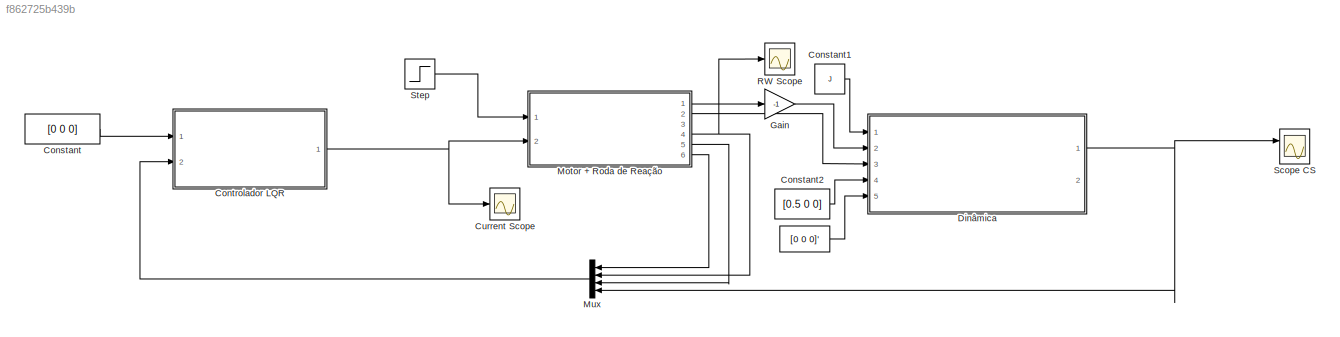
MODEL slx_f862725b439b
KIND model
CONFIG AbsTol = auto
CONFIG EnableMultiTasking = off
CONFIG FixedStep = auto
CONFIG MaxStep = 0.4
CONFIG MinStep = auto
CONFIG RelTol = 1e-3
CONFIG SampleTimeConstraint = Unconstrained
CONFIG SolverName = ode45
CONFIG StartTime = 0.0
CONFIG StopTime = 15
BLOCK [Constant]  
  Value = [0 0 0]'
BLOCK [Constant] Constant
  Value = [0 0 0]
BLOCK [Constant] Constant1
  Value = J
BLOCK [Constant] Constant2
  Value = [0.5 0 0]
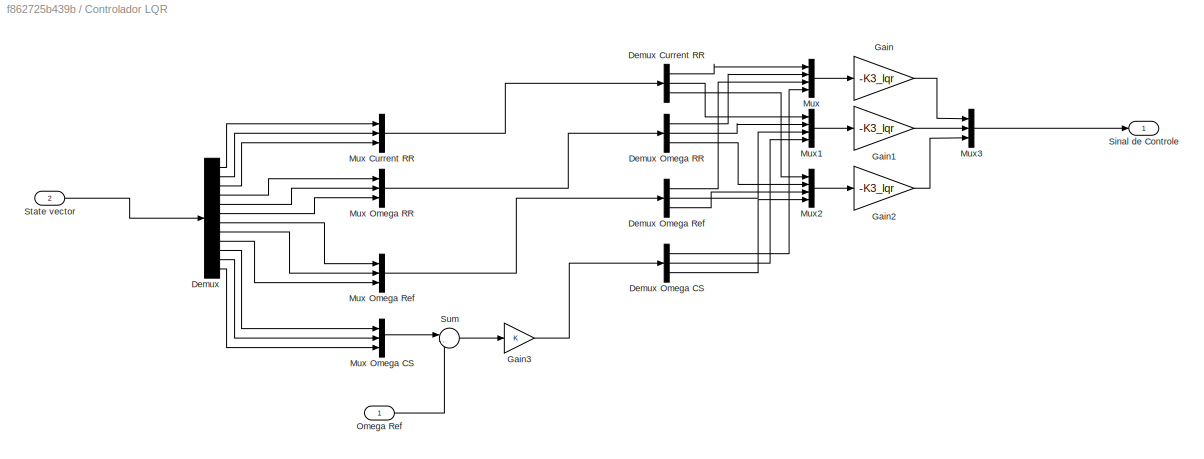
BLOCK [SubSystem] Controlador LQR
  Ports = [2, 1]
  RequestExecContextInheritance = off
BLOCK [Demux] Controlador LQR/Demux
  Outputs = 12
  Ports = [1, 12]
BLOCK [Demux] Controlador LQR/Demux Current RR
  Outputs = 3
  Ports = [1, 3]
BLOCK [Demux] Controlador LQR/Demux Omega CS
  Outputs = 3
  Ports = [1, 3]
BLOCK [Demux] Controlador LQR/Demux Omega RR
  Outputs = 3
  Ports = [1, 3]
BLOCK [Demux] Controlador LQR/Demux Omega Ref
  Outputs = 3
  Ports = [1, 3]
BLOCK [Gain] Controlador LQR/Gain
  Gain = -K3_lqr
  Multiplication = Matrix(K*u)
BLOCK [Gain] Controlador LQR/Gain1
  Gain = -K3_lqr
  Multiplication = Matrix(K*u)
BLOCK [Gain] Controlador LQR/Gain2
  Gain = -K3_lqr
  Multiplication = Matrix(K*u)
BLOCK [Gain] Controlador LQR/Gain3
BLOCK [Mux] Controlador LQR/Mux
  DisplayOption = bar
  Ports = [4, 1]
BLOCK [Mux] Controlador LQR/Mux Current RR
  DisplayOption = bar
  Inputs = 3
  Ports = [3, 1]
BLOCK [Mux] Controlador LQR/Mux Omega CS
  DisplayOption = bar
  Inputs = 3
  Ports = [3, 1]
BLOCK [Mux] Controlador LQR/Mux Omega RR
  DisplayOption = bar
  Inputs = 3
  Ports = [3, 1]
BLOCK [Mux] Controlador LQR/Mux Omega Ref
  DisplayOption = bar
  Inputs = 3
  Ports = [3, 1]
BLOCK [Mux] Controlador LQR/Mux1
  DisplayOption = bar
  Ports = [4, 1]
BLOCK [Mux] Controlador LQR/Mux2
  DisplayOption = bar
  Ports = [4, 1]
BLOCK [Mux] Controlador LQR/Mux3
  DisplayOption = bar
  Inputs = 3
  Ports = [3, 1]
BLOCK [Inport] Controlador LQR/Omega Ref
BLOCK [Outport] Controlador LQR/Sinal de Controle
BLOCK [Inport] Controlador LQR/State vector
  Port = 2
BLOCK [Sum] Controlador LQR/Sum
  Inputs = |-+
  Ports = [2, 1]
BLOCK [Scope] Current Scope
  Floating = off
  NumInputPorts = 1
  Ports = [1]
  ScopeSpecificationString = Simulink.scopes.TimeScopeBlockCfg('CurrentConfiguration', extmgr.ConfigurationSet(extmgr.Configuration('Core','General UI',true),extmgr.Configuration('Core','Source UI',true),extmgr.Configuration('Sources','WiredSimulink',true,'DataLoggingVariableName','ScopeData1'),extmgr.Configuration('Visuals','Time Domain',true,'SerializedDisplays',{struct('MinYLimReal','-398.07098','MaxYLimReal','44.23011','Y...<+1525ch>
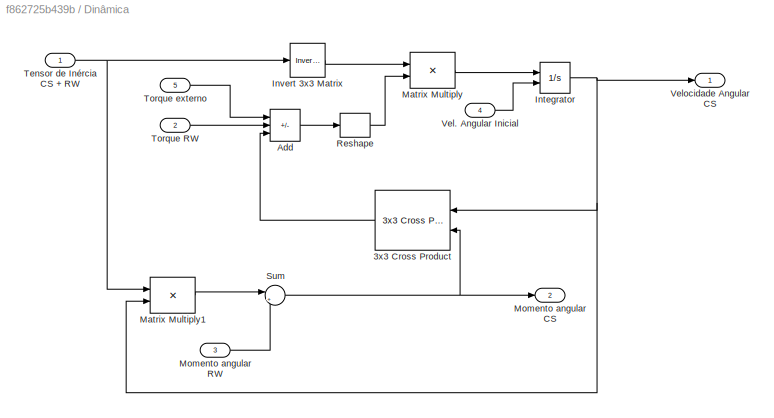
BLOCK [SubSystem] Dinâmica
  Ports = [5, 2]
  RequestExecContextInheritance = off
BLOCK [Reference] Dinâmica/3x3 Cross Product  REF=sharedutil/3x3 Cross Product
  NameLocation = top
  Ports = [2, 1]
  SourceBlock = sharedutil/3x3 Cross Product
  SourceProductBaseCode = AE,PW,DR,MT,UV,VE
  SourceType = CrossProduct
BLOCK [Sum] Dinâmica/Add
  IconShape = rectangular
  Inputs = +--
  Ports = [3, 1]
BLOCK [Integrator] Dinâmica/Integrator
  InitialConditionSource = external
  Ports = [2, 1]
BLOCK [Reference] Dinâmica/Invert 3x3 Matrix  REF=aerolibutil/Invert 
3x3 Matrix
  Ports = [1, 1]
  SourceBlock = aerolibutil/Invert \n3x3 Matrix
  SourceProductBaseCode = AE
  SourceType = Invert 3x3 Matrix
BLOCK [Product] Dinâmica/Matrix Multiply
  Multiplication = Matrix(*)
  Ports = [2, 1]
BLOCK [Product] Dinâmica/Matrix Multiply1
  Multiplication = Matrix(*)
  Ports = [2, 1]
BLOCK [Outport] Dinâmica/Momento angular CS
  Port = 2
BLOCK [Inport] Dinâmica/Momento angular RW
  Port = 3
BLOCK [Reshape] Dinâmica/Reshape
  OutputDimensionality = Column vector (2-D)
  Ports = [1, 1]
BLOCK [Sum] Dinâmica/Sum
  Inputs = |++
  Ports = [2, 1]
BLOCK [Inport] Dinâmica/Tensor de Inércia CS + RW
BLOCK [Inport] Dinâmica/Torque RW
  Port = 2
BLOCK [Inport] Dinâmica/Torque externo
  Port = 5
BLOCK [Inport] Dinâmica/Vel. Angular Inicial
  Port = 4
BLOCK [Outport] Dinâmica/Velocidade Angular CS
BLOCK [Gain] Gain
  Gain = -1
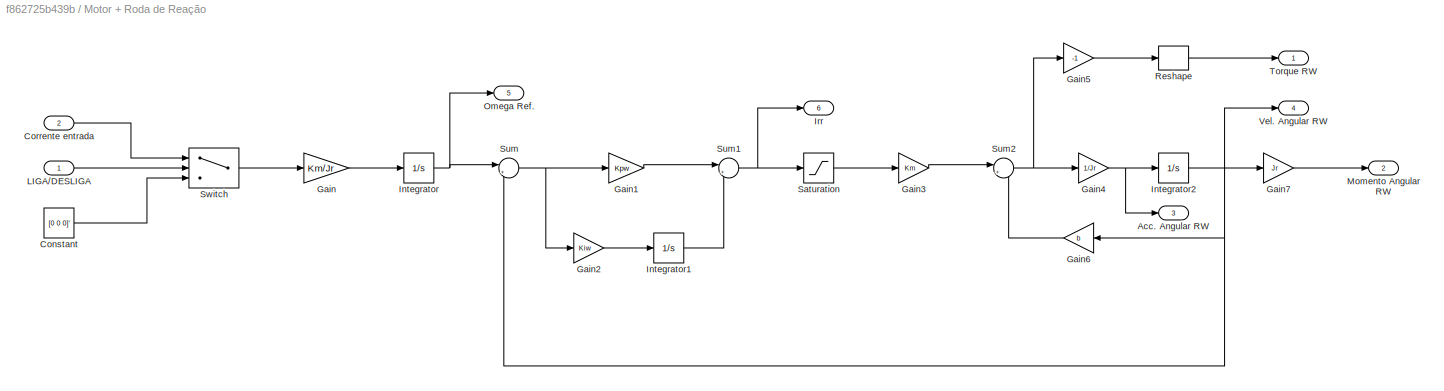
BLOCK [SubSystem] Motor + Roda de Reação
  Ports = [2, 6]
  RequestExecContextInheritance = off
BLOCK [Outport] Motor + Roda de Reação/Acc. Angular RW
  Port = 3
BLOCK [Constant] Motor + Roda de Reação/Constant
  Value = [0 0 0]'
BLOCK [Inport] Motor + Roda de Reação/Corrente entrada
  Port = 2
BLOCK [Gain] Motor + Roda de Reação/Gain
  Gain = Km/Jr
BLOCK [Gain] Motor + Roda de Reação/Gain1
  Gain = Kpw
BLOCK [Gain] Motor + Roda de Reação/Gain2
  Gain = Kiw
BLOCK [Gain] Motor + Roda de Reação/Gain3
  Gain = Km
BLOCK [Gain] Motor + Roda de Reação/Gain4
  Gain = 1/Jr
BLOCK [Gain] Motor + Roda de Reação/Gain5
  Gain = -1
BLOCK [Gain] Motor + Roda de Reação/Gain6
  Gain = b
  NameLocation = top
BLOCK [Gain] Motor + Roda de Reação/Gain7
  Gain = Jr
BLOCK [Integrator] Motor + Roda de Reação/Integrator
  Ports = [1, 1]
BLOCK [Integrator] Motor + Roda de Reação/Integrator1
  Ports = [1, 1]
BLOCK [Integrator] Motor + Roda de Reação/Integrator2
  Ports = [1, 1]
BLOCK [Outport] Motor + Roda de Reação/Irr
  Port = 6
BLOCK [Inport] Motor + Roda de Reação/LIGA//DESLIGA
BLOCK [Outport] Motor + Roda de Reação/Momento Angular RW
  Port = 2
BLOCK [Outport] Motor + Roda de Reação/Omega Ref.
  Port = 5
BLOCK [Reshape] Motor + Roda de Reação/Reshape
  OutputDimensionality = Column vector (2-D)
  Ports = [1, 1]
BLOCK [Saturate] Motor + Roda de Reação/Saturation
BLOCK [Sum] Motor + Roda de Reação/Sum
  Inputs = |+-
  Ports = [2, 1]
BLOCK [Sum] Motor + Roda de Reação/Sum1
  Inputs = |++
  Ports = [2, 1]
BLOCK [Sum] Motor + Roda de Reação/Sum2
  Inputs = |+-
  Ports = [2, 1]
BLOCK [Switch] Motor + Roda de Reação/Switch
  Criteria = u2 > Threshold
  InputSameDT = off
  SaturateOnIntegerOverflow = off
BLOCK [Outport] Motor + Roda de Reação/Torque RW
BLOCK [Outport] Motor + Roda de Reação/Vel. Angular RW
  Port = 4
BLOCK [Mux] Mux
  DisplayOption = bar
  Ports = [4, 1]
BLOCK [Scope] RW Scope
  Floating = off
  NumInputPorts = 1
  Ports = [1]
  ScopeSpecificationString = Simulink.scopes.TimeScopeBlockCfg('CurrentConfiguration', extmgr.ConfigurationSet(extmgr.Configuration('Core','General UI',true),extmgr.Configuration('Core','Source UI',true),extmgr.Configuration('Sources','WiredSimulink',true,'DataLoggingVariableName','ScopeData2'),extmgr.Configuration('Visuals','Time Domain',true,'SerializedDisplays',{struct('MinYLimReal','-140.00009','MaxYLimReal','15.55557','Y...<+1553ch>
BLOCK [Scope] Scope CS
  Floating = off
  NumInputPorts = 2
  Ports = [2]
  ScopeSpecificationString = Simulink.scopes.TimeScopeBlockCfg('CurrentConfiguration', extmgr.ConfigurationSet(extmgr.Configuration('Core','General UI',true),extmgr.Configuration('Core','Source UI',true),extmgr.Configuration('Sources','WiredSimulink',true),extmgr.Configuration('Visuals','Time Domain',true,'SerializedDisplays',{struct('MinYLimReal','-0.08401','MaxYLimReal','0.75608','YLabelReal','','MinYLimMag','0.00000','MaxY...<+1675ch>
BLOCK [Step] Step
  Before = 1
  SampleTime = 0
  Time = 100
LINE  :1 -> Dinâmica:5
LINE Constant1:1 -> Dinâmica:1
LINE Constant2:1 -> Dinâmica:4
LINE Constant:1 -> Controlador LQR:1
LINE Controlador LQR/Demux Current RR:1 -> Controlador LQR/Mux:1
LINE Controlador LQR/Demux Current RR:2 -> Controlador LQR/Mux1:1
LINE Controlador LQR/Demux Current RR:3 -> Controlador LQR/Mux2:1
LINE Controlador LQR/Demux Omega CS:1 -> Controlador LQR/Mux:4
LINE Controlador LQR/Demux Omega CS:2 -> Controlador LQR/Mux1:4
LINE Controlador LQR/Demux Omega CS:3 -> Controlador LQR/Mux2:4
LINE Controlador LQR/Demux Omega RR:1 -> Controlador LQR/Mux:2
LINE Controlador LQR/Demux Omega RR:2 -> Controlador LQR/Mux1:2
LINE Controlador LQR/Demux Omega RR:3 -> Controlador LQR/Mux2:2
LINE Controlador LQR/Demux Omega Ref:1 -> Controlador LQR/Mux:3
LINE Controlador LQR/Demux Omega Ref:2 -> Controlador LQR/Mux1:3
LINE Controlador LQR/Demux Omega Ref:3 -> Controlador LQR/Mux2:3
LINE Controlador LQR/Demux:1 -> Controlador LQR/Mux Current RR:1
LINE Controlador LQR/Demux:10 -> Controlador LQR/Mux Omega CS:1
LINE Controlador LQR/Demux:11 -> Controlador LQR/Mux Omega CS:2
LINE Controlador LQR/Demux:12 -> Controlador LQR/Mux Omega CS:3
LINE Controlador LQR/Demux:2 -> Controlador LQR/Mux Current RR:2
LINE Controlador LQR/Demux:3 -> Controlador LQR/Mux Current RR:3
LINE Controlador LQR/Demux:4 -> Controlador LQR/Mux Omega RR:1
LINE Controlador LQR/Demux:5 -> Controlador LQR/Mux Omega RR:2
LINE Controlador LQR/Demux:6 -> Controlador LQR/Mux Omega RR:3
LINE Controlador LQR/Demux:7 -> Controlador LQR/Mux Omega Ref:1
LINE Controlador LQR/Demux:8 -> Controlador LQR/Mux Omega Ref:2
LINE Controlador LQR/Demux:9 -> Controlador LQR/Mux Omega Ref:3
LINE Controlador LQR/Gain1:1 -> Controlador LQR/Mux3:2
LINE Controlador LQR/Gain2:1 -> Controlador LQR/Mux3:3
LINE Controlador LQR/Gain3:1 -> Controlador LQR/Demux Omega CS:1
LINE Controlador LQR/Gain:1 -> Controlador LQR/Mux3:1
LINE Controlador LQR/Mux Current RR:1 -> Controlador LQR/Demux Current RR:1
LINE Controlador LQR/Mux Omega CS:1 -> Controlador LQR/Sum:1
LINE Controlador LQR/Mux Omega RR:1 -> Controlador LQR/Demux Omega RR:1
LINE Controlador LQR/Mux Omega Ref:1 -> Controlador LQR/Demux Omega Ref:1
LINE Controlador LQR/Mux1:1 -> Controlador LQR/Gain1:1
LINE Controlador LQR/Mux2:1 -> Controlador LQR/Gain2:1
LINE Controlador LQR/Mux3:1 -> Controlador LQR/Sinal de Controle:1
LINE Controlador LQR/Mux:1 -> Controlador LQR/Gain:1
LINE Controlador LQR/Omega Ref:1 -> Controlador LQR/Sum:2
LINE Controlador LQR/State vector:1 -> Controlador LQR/Demux:1
LINE Controlador LQR/Sum:1 -> Controlador LQR/Gain3:1
NET Controlador LQR:1 -> Current Scope:1, Motor + Roda de Reação:2
LINE Dinâmica/3x3 Cross Product:1 -> Dinâmica/Add:3
LINE Dinâmica/Add:1 -> Dinâmica/Reshape:1
NET Dinâmica/Integrator:1 -> Dinâmica/3x3 Cross Product:1, Dinâmica/Matrix Multiply1:2, Dinâmica/Velocidade Angular CS:1
LINE Dinâmica/Invert 3x3 Matrix:1 -> Dinâmica/Matrix Multiply:1
LINE Dinâmica/Matrix Multiply1:1 -> Dinâmica/Sum:1
LINE Dinâmica/Matrix Multiply:1 -> Dinâmica/Integrator:1
LINE Dinâmica/Momento angular RW:1 -> Dinâmica/Sum:2
LINE Dinâmica/Reshape:1 -> Dinâmica/Matrix Multiply:2
NET Dinâmica/Sum:1 -> Dinâmica/3x3 Cross Product:2, Dinâmica/Momento angular CS:1
NET Dinâmica/Tensor de Inércia CS + RW:1 -> Dinâmica/Invert 3x3 Matrix:1, Dinâmica/Matrix Multiply1:1
LINE Dinâmica/Torque RW:1 -> Dinâmica/Add:2
LINE Dinâmica/Torque externo:1 -> Dinâmica/Add:1
LINE Dinâmica/Vel. Angular Inicial:1 -> Dinâmica/Integrator:2
NET Dinâmica:1 -> Mux:4, Scope CS:1
LINE Gain:1 -> Dinâmica:2
LINE Motor + Roda de Reação/Constant:1 -> Motor + Roda de Reação/Switch:3
LINE Motor + Roda de Reação/Corrente entrada:1 -> Motor + Roda de Reação/Switch:1
LINE Motor + Roda de Reação/Gain1:1 -> Motor + Roda de Reação/Sum1:1
LINE Motor + Roda de Reação/Gain2:1 -> Motor + Roda de Reação/Integrator1:1
LINE Motor + Roda de Reação/Gain3:1 -> Motor + Roda de Reação/Sum2:1
NET Motor + Roda de Reação/Gain4:1 -> Motor + Roda de Reação/Acc. Angular RW:1, Motor + Roda de Reação/Integrator2:1
LINE Motor + Roda de Reação/Gain5:1 -> Motor + Roda de Reação/Reshape:1
LINE Motor + Roda de Reação/Gain6:1 -> Motor + Roda de Reação/Sum2:2
LINE Motor + Roda de Reação/Gain7:1 -> Motor + Roda de Reação/Momento Angular RW:1
LINE Motor + Roda de Reação/Gain:1 -> Motor + Roda de Reação/Integrator:1
LINE Motor + Roda de Reação/Integrator1:1 -> Motor + Roda de Reação/Sum1:2
NET Motor + Roda de Reação/Integrator2:1 -> Motor + Roda de Reação/Gain6:1, Motor + Roda de Reação/Gain7:1, Motor + Roda de Reação/Sum:2, Motor + Roda de Reação/Vel. Angular RW:1
NET Motor + Roda de Reação/Integrator:1 -> Motor + Roda de Reação/Omega Ref.:1, Motor + Roda de Reação/Sum:1
LINE Motor + Roda de Reação/LIGA//DESLIGA:1 -> Motor + Roda de Reação/Switch:2
LINE Motor + Roda de Reação/Reshape:1 -> Motor + Roda de Reação/Torque RW:1
LINE Motor + Roda de Reação/Saturation:1 -> Motor + Roda de Reação/Gain3:1
NET Motor + Roda de Reação/Sum1:1 -> Motor + Roda de Reação/Irr:1, Motor + Roda de Reação/Saturation:1
NET Motor + Roda de Reação/Sum2:1 -> Motor + Roda de Reação/Gain4:1, Motor + Roda de Reação/Gain5:1
NET Motor + Roda de Reação/Sum:1 -> Motor + Roda de Reação/Gain1:1, Motor + Roda de Reação/Gain2:1
LINE Motor + Roda de Reação/Switch:1 -> Motor + Roda de Reação/Gain:1
LINE Motor + Roda de Reação:1 -> Gain:1
LINE Motor + Roda de Reação:2 -> Dinâmica:3
NET Motor + Roda de Reação:4 -> Mux:2, RW Scope:1
LINE Motor + Roda de Reação:5 -> Mux:3
LINE Motor + Roda de Reação:6 -> Mux:1
LINE Mux:1 -> Controlador LQR:2
LINE Step:1 -> Motor + Roda de Reação:1
note: NET lines group one-source signal fan-out (src -> all destinations, sorted); 1:1 wires keep LINE
